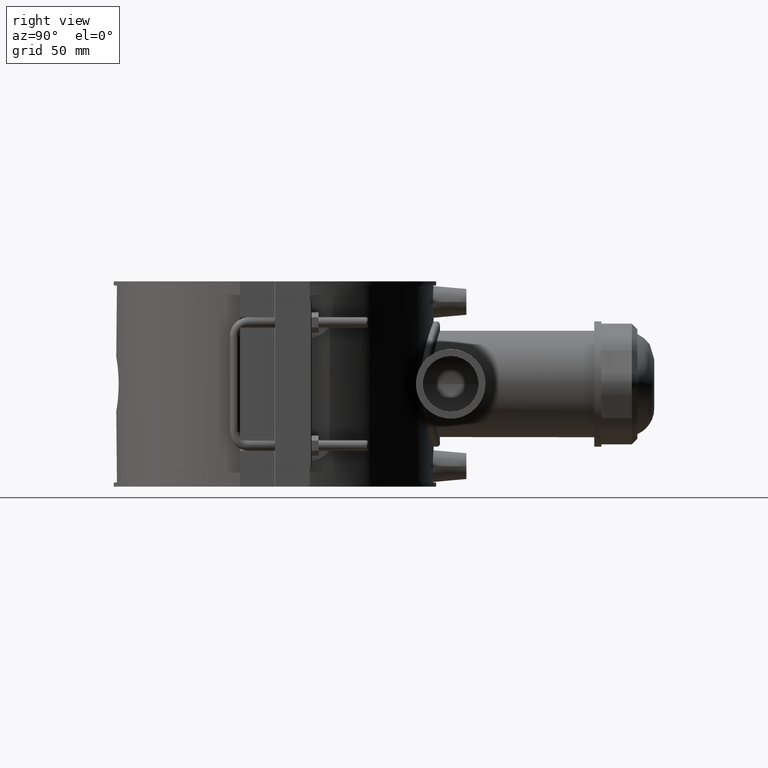
[diagram: clean part render]
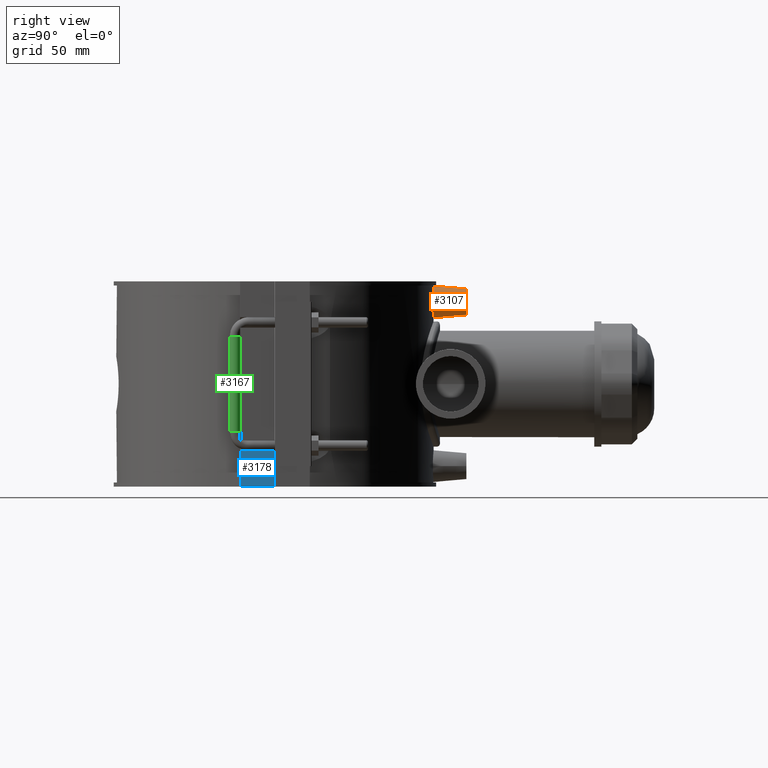
[diagram: same view with three faces highlighted in distinct colors, each labeled with its STEP entity id]
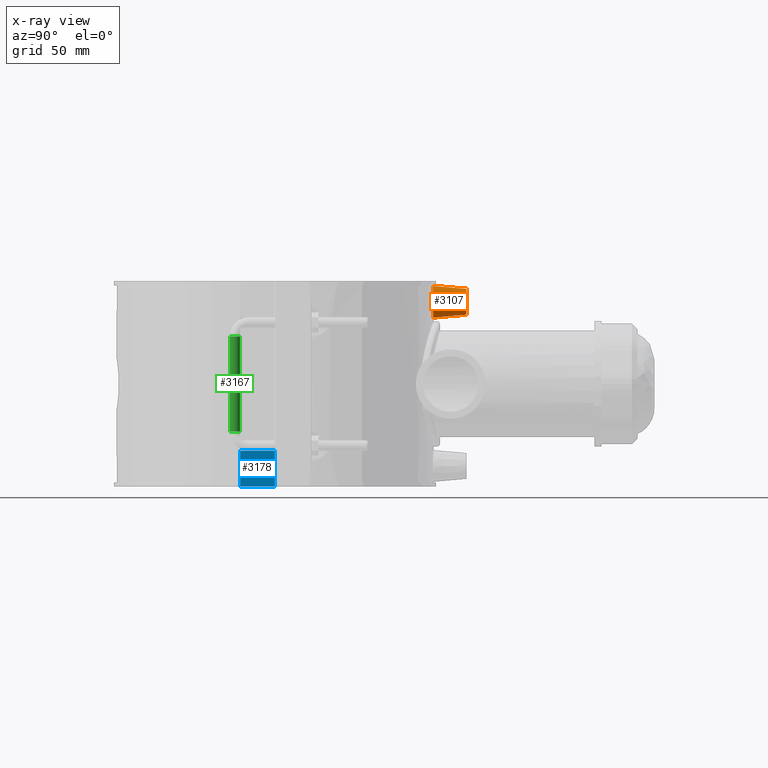
[diagram: x-ray of the same camera — body ghosted, the three highlighted faces saturated]
A machine part, right view with three faces highlighted in distinct colors.
The next image is the same camera in x-ray (body ghosted, the three faces saturated) — at least one of them is partly hidden behind the body in this view.
Their STEP definitions:

[orange] entity #3107 — the highlighted conical surface has half-angle 5 deg.
#34=CONICAL_SURFACE('',#3347,7.5,5.);
#770=CIRCLE('',#3348,7.5);
#834=FACE_BOUND('',#1164,.T.);
#960=FACE_OUTER_BOUND('',#1163,.T.);
#1163=EDGE_LOOP('',(#2554));
#1164=EDGE_LOOP('',(#2555));
#1300=B_SPLINE_CURVE_WITH_KNOTS('',3,(#5399,#5400,#5401,#5402,#5403,#5404,
#5405,#5406,#5407,#5408,#5409,#5410,#5411,#5412,#5413,#5414,#5415,#5416,
#5417,#5418,#5419,#5420,#5421,#5422,#5423,#5424,#5425,#5426,#5427,#5428,
#5429,#5430,#5431,#5432),.UNSPECIFIED.,.T.,.F.,(4,2,2,2,2,2,2,2,2,2,2,2,
2,2,2,2,4),(0.,0.346065054083076,0.692130108166152,1.03704234345026,1.38195457873438,
1.72686681401849,2.0717790493026,2.41784410338567,2.76390915746875,3.10957379604714,
3.45523843462554,3.80055069679235,4.14586295895917,4.49117522112599,4.8364874832928,
5.1821521218712,5.52781676044959),.UNSPECIFIED.);
#1455=VERTEX_POINT('',#5398);
#1539=VERTEX_POINT('',#5925);
#1797=EDGE_CURVE('',#1455,#1455,#1300,.T.);
#1915=EDGE_CURVE('',#1539,#1539,#770,.T.);
#2554=ORIENTED_EDGE('',*,*,#1915,.F.);
#2555=ORIENTED_EDGE('',*,*,#1797,.F.);
#3107=ADVANCED_FACE('',(#960,#834),#34,.T.);
#3347=AXIS2_PLACEMENT_3D('',#5924,#3970,#3971);
#3348=AXIS2_PLACEMENT_3D('',#5926,#3972,#3973);
#3970=DIRECTION('center_axis',(0.,-1.,0.));
#3971=DIRECTION('ref_axis',(1.,0.,0.));
#3972=DIRECTION('center_axis',(0.,1.,0.));
#3973=DIRECTION('ref_axis',(1.,0.,0.));
#5398=CARTESIAN_POINT('',(9.18535871939005,90.7362616884569,47.2));
#5399=CARTESIAN_POINT('Ctrl Pts',(-9.18535871939005,90.7362616884569,47.2));
#5400=CARTESIAN_POINT('Ctrl Pts',(-9.18535871939005,90.7362616884569,46.0464498197231));
#5401=CARTESIAN_POINT('Ctrl Pts',(-8.95271060001911,90.7607479368476,44.8172530720308));
#5402=CARTESIAN_POINT('Ctrl Pts',(-8.00941505919708,90.8488506341557,42.5592810057039));
#5403=CARTESIAN_POINT('Ctrl Pts',(-7.29884239188916,90.9111644020812,41.5304238181904));
#5404=CARTESIAN_POINT('Ctrl Pts',(-5.66508973086935,91.0275518498036,39.9110715030919));
#5405=CARTESIAN_POINT('Ctrl Pts',(-4.63386079845111,91.0892061742376,39.2111731607874));
#5406=CARTESIAN_POINT('Ctrl Pts',(-2.37619622321046,91.1760376342106,38.2832359769919));
#5407=CARTESIAN_POINT('Ctrl Pts',(-1.14970745094704,91.2,38.0552131257126));
#5408=CARTESIAN_POINT('Ctrl Pts',(1.14970745094704,91.2,38.0552131257126));
#5409=CARTESIAN_POINT('Ctrl Pts',(2.37619622321046,91.1760376342106,38.2832359769919));
#5410=CARTESIAN_POINT('Ctrl Pts',(4.63386079845112,91.0892061742376,39.2111731607874));
#5411=CARTESIAN_POINT('Ctrl Pts',(5.66508973086935,91.0275518498036,39.9110715030919));
#5412=CARTESIAN_POINT('Ctrl Pts',(7.29884239188916,90.9111644020812,41.5304238181904));
#5413=CARTESIAN_POINT('Ctrl Pts',(8.00941505919708,90.8488506341557,42.5592810057039));
#5414=CARTESIAN_POINT('Ctrl Pts',(8.95271060001911,90.7607479368476,44.8172530720308));
#5415=CARTESIAN_POINT('Ctrl Pts',(9.18535871939005,90.7362616884569,46.0464498197231));
#5416=CARTESIAN_POINT('Ctrl Pts',(9.18535871939005,90.7362616884569,48.352215461928));
#5417=CARTESIAN_POINT('Ctrl Pts',(8.95324403729757,90.7606900825598,49.5800841296841));
#5418=CARTESIAN_POINT('Ctrl Pts',(8.01194907454095,90.8486219657987,51.8360347071784));
#5419=CARTESIAN_POINT('Ctrl Pts',(7.30284350220761,90.9108281977478,52.864198165275));
#5420=CARTESIAN_POINT('Ctrl Pts',(5.67049896938736,91.0272172622692,54.4849679392758));
#5421=CARTESIAN_POINT('Ctrl Pts',(4.63856343325106,91.0889794944252,55.1863216568089));
#5422=CARTESIAN_POINT('Ctrl Pts',(2.3788610994409,91.1759808049367,56.1162391747394));
#5423=CARTESIAN_POINT('Ctrl Pts',(1.15104087388939,91.2,56.3447868742874));
#5424=CARTESIAN_POINT('Ctrl Pts',(-1.15104087388938,91.2,56.3447868742874));
#5425=CARTESIAN_POINT('Ctrl Pts',(-2.37886109944089,91.1759808049367,56.1162391747394));
#5426=CARTESIAN_POINT('Ctrl Pts',(-4.63856343325106,91.0889794944252,55.1863216568089));
#5427=CARTESIAN_POINT('Ctrl Pts',(-5.67049896938736,91.0272172622692,54.4849679392758));
#5428=CARTESIAN_POINT('Ctrl Pts',(-7.30284350220761,90.9108281977478,52.864198165275));
#5429=CARTESIAN_POINT('Ctrl Pts',(-8.01194907454096,90.8486219657987,51.8360347071784));
#5430=CARTESIAN_POINT('Ctrl Pts',(-8.95324403729757,90.7606900825598,49.5800841296841));
#5431=CARTESIAN_POINT('Ctrl Pts',(-9.18535871939005,90.7362616884569,48.352215461928));
#5432=CARTESIAN_POINT('Ctrl Pts',(-9.18535871939005,90.7362616884569,47.2));
#5924=CARTESIAN_POINT('Origin',(0.,110.,47.2));
#5925=CARTESIAN_POINT('',(-7.5,110.,47.2));
#5926=CARTESIAN_POINT('Origin',(0.,110.,47.2));

[blue] entity #3178 — the highlighted planar face has unit normal (1, 0, 0).
#137=LINE('',#5437,#416);
#296=LINE('',#6422,#575);
#302=LINE('',#6433,#581);
#308=LINE('',#6444,#587);
#416=VECTOR('',#3789,20.6);
#575=VECTOR('',#4248,19.95);
#581=VECTOR('',#4258,20.6);
#587=VECTOR('',#4268,19.95);
#697=PLANE('',#3455);
#1031=FACE_OUTER_BOUND('',#1259,.T.);
#1259=EDGE_LOOP('',(#2871,#2872,#2873,#2874));
#1456=VERTEX_POINT('',#5434);
#1457=VERTEX_POINT('',#5436);
#1614=VERTEX_POINT('',#6421);
#1617=VERTEX_POINT('',#6432);
#1799=EDGE_CURVE('',#1456,#1457,#137,.T.);
#2038=EDGE_CURVE('',#1614,#1457,#296,.T.);
#2044=EDGE_CURVE('',#1617,#1614,#302,.T.);
#2050=EDGE_CURVE('',#1617,#1456,#308,.T.);
#2871=ORIENTED_EDGE('',*,*,#2038,.T.);
#2872=ORIENTED_EDGE('',*,*,#1799,.F.);
#2873=ORIENTED_EDGE('',*,*,#2050,.F.);
#2874=ORIENTED_EDGE('',*,*,#2044,.T.);
#3178=ADVANCED_FACE('',(#1031),#697,.T.);
#3455=AXIS2_PLACEMENT_3D('',#6443,#4266,#4267);
#3789=DIRECTION('',(0.,0.,1.));
#4248=DIRECTION('',(0.,-1.,0.));
#4258=DIRECTION('',(0.,0.,1.));
#4266=DIRECTION('center_axis',(1.,0.,0.));
#4267=DIRECTION('ref_axis',(0.,1.,0.));
#4268=DIRECTION('',(0.,-1.,0.));
#5434=CARTESIAN_POINT('',(99.5,-20.,-59.));
#5436=CARTESIAN_POINT('',(99.5,-20.,-38.4));
#5437=CARTESIAN_POINT('',(99.5,-20.,0.));
#6421=CARTESIAN_POINT('',(99.5,-0.0500000000000078,-38.4));
#6422=CARTESIAN_POINT('',(99.5,-20.,-38.4));
#6432=CARTESIAN_POINT('',(99.5,-0.0500000000000078,-59.));
#6433=CARTESIAN_POINT('',(99.5,-0.0500000000000078,-29.5));
#6443=CARTESIAN_POINT('Origin',(99.5,-20.,0.));
#6444=CARTESIAN_POINT('',(99.5,-20.,-59.));

[green] entity #3167 — the highlighted cylindrical surface (bore or boss wall) has radius 3 mm, axis along (0, -0, -1).
#139=LINE('',#5456,#418);
#418=VECTOR('',#3793,54.7999999999999);
#798=CIRCLE('',#3431,3.);
#803=CIRCLE('',#3437,3.);
#1020=FACE_OUTER_BOUND('',#1248,.T.);
#1248=EDGE_LOOP('',(#2805,#2806,#2807,#2808));
#1460=VERTEX_POINT('',#5442);
#1461=VERTEX_POINT('',#5455);
#1803=EDGE_CURVE('',#1461,#1460,#139,.T.);
#2003=EDGE_CURVE('',#1460,#1460,#798,.T.);
#2014=EDGE_CURVE('',#1461,#1461,#803,.T.);
#2805=ORIENTED_EDGE('',*,*,#2014,.T.);
#2806=ORIENTED_EDGE('',*,*,#1803,.T.);
#2807=ORIENTED_EDGE('',*,*,#2003,.F.);
#2808=ORIENTED_EDGE('',*,*,#1803,.F.);
#3005=CYLINDRICAL_SURFACE('',#3442,3.);
#3167=ADVANCED_FACE('',(#1020),#3005,.T.);
#3431=AXIS2_PLACEMENT_3D('',#6270,#4189,#4190);
#3437=AXIS2_PLACEMENT_3D('',#6355,#4201,#4202);
#3442=AXIS2_PLACEMENT_3D('',#6391,#4215,#4216);
#3793=DIRECTION('',(0.,-3.24152707919754E-16,-1.));
#4189=DIRECTION('center_axis',(0.,-6.12323399573677E-17,-1.));
#4190=DIRECTION('ref_axis',(-1.,0.,0.));
#4201=DIRECTION('center_axis',(0.,-6.12323399573677E-17,-1.));
#4202=DIRECTION('ref_axis',(-1.,0.,0.));
#4215=DIRECTION('center_axis',(0.,-3.24152707919754E-16,-1.));
#4216=DIRECTION('ref_axis',(-1.,0.,0.));
#5442=CARTESIAN_POINT('',(93.5,-20.,-27.4));
#5455=CARTESIAN_POINT('',(93.5,-20.,27.3999999999999));
#5456=CARTESIAN_POINT('',(93.5,-20.,27.3999999999999));
#6270=CARTESIAN_POINT('Origin',(93.5,-22.9999999999995,-27.4));
#6355=CARTESIAN_POINT('Origin',(93.5,-22.9999999999994,27.3999999999999));
#6391=CARTESIAN_POINT('Origin',(93.5,-22.9999999999994,27.3999999999999));